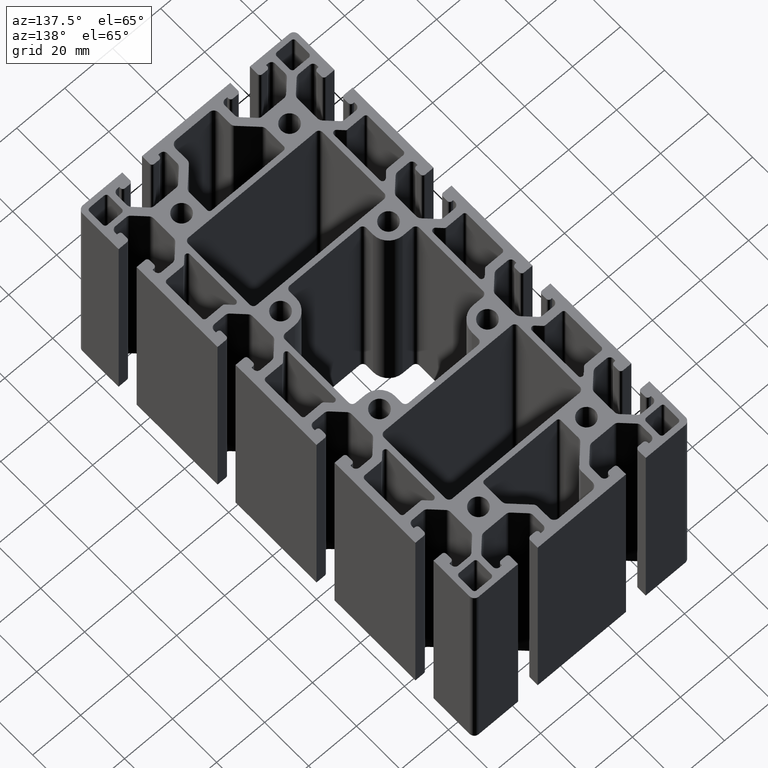
[diagram: clean part render]
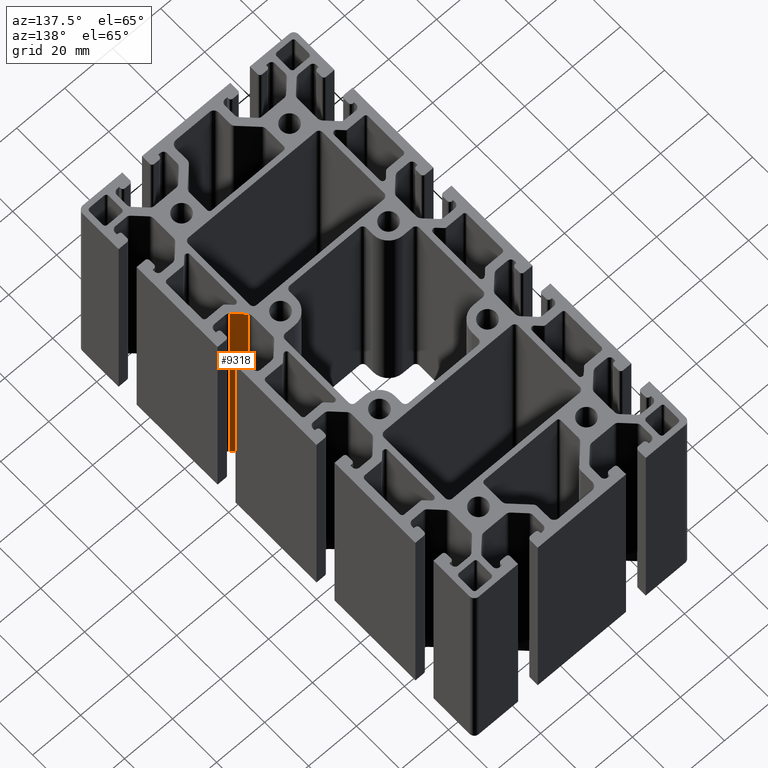
[diagram: same view with one face highlighted and labeled with its STEP entity id]
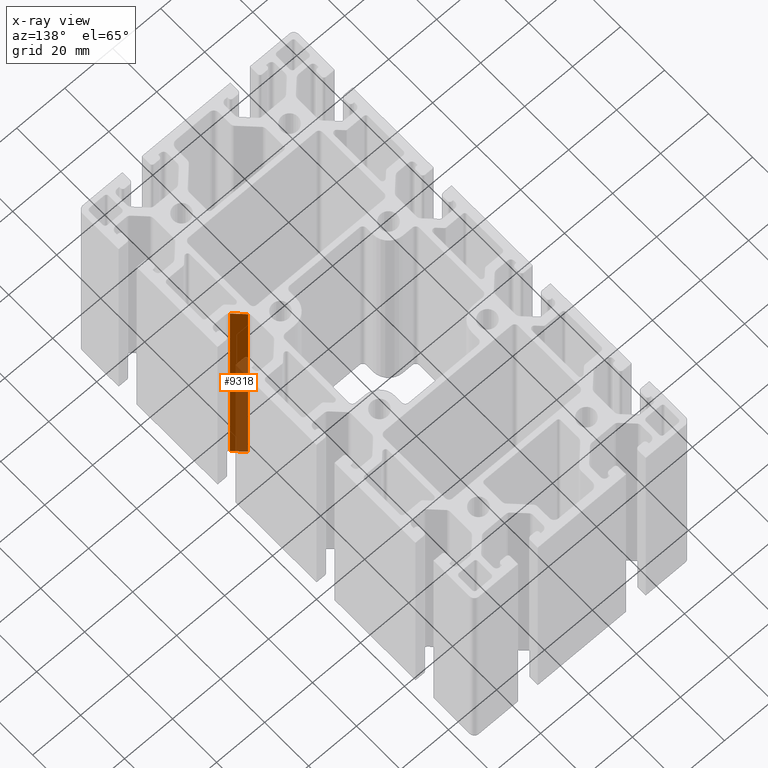
[diagram: x-ray of the same camera — body ghosted, the highlighted face saturated]
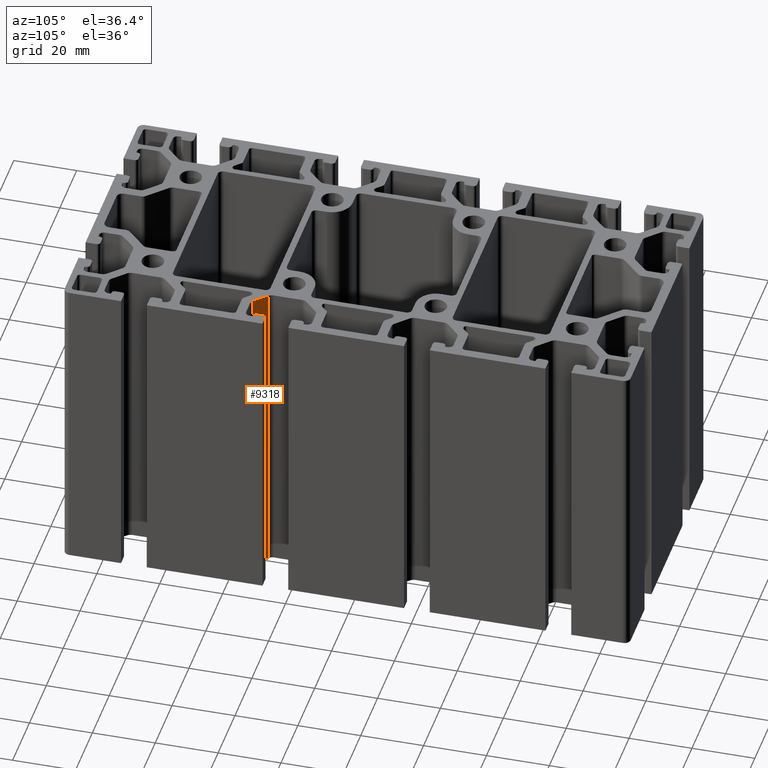
[diagram: same view with one face highlighted and labeled with its STEP entity id]
A machine part, auxiliary view. The second image highlights one B-rep face of the part: STEP entity #9318.
The next image is the same camera in x-ray: the body ghosted, the highlighted face saturated — about 46% of this face is hidden behind the body in this view.
A second angle (auxiliary view) of the same face is appended — the face is thin or edge-on in the first view.
In plain terms, the highlighted planar face has unit normal (0.7071, 0.7071, 0).
Its self-contained STEP definition (entity closure, byte-faithful):
#106=PLANE('',#9866);
#400=FACE_OUTER_BOUND('',#884,.T.);
#884=EDGE_LOOP('',(#6437,#6438,#6439,#6440));
#1490=LINE('',#13908,#2482);
#1491=LINE('',#13911,#2483);
#1492=LINE('',#13913,#2484);
#1493=LINE('',#13914,#2485);
#2482=VECTOR('',#11064,100.);
#2483=VECTOR('',#11067,5.58614357137374);
#2484=VECTOR('',#11068,5.58614357137374);
#2485=VECTOR('',#11069,100.);
#3911=VERTEX_POINT('',#13904);
#3912=VERTEX_POINT('',#13906);
#3913=VERTEX_POINT('',#13910);
#3914=VERTEX_POINT('',#13912);
#4938=EDGE_CURVE('',#3911,#3912,#1490,.T.);
#4939=EDGE_CURVE('',#3913,#3911,#1491,.T.);
#4940=EDGE_CURVE('',#3914,#3912,#1492,.T.);
#4941=EDGE_CURVE('',#3913,#3914,#1493,.T.);
#6437=ORIENTED_EDGE('',*,*,#4939,.T.);
#6438=ORIENTED_EDGE('',*,*,#4938,.T.);
#6439=ORIENTED_EDGE('',*,*,#4940,.F.);
#6440=ORIENTED_EDGE('',*,*,#4941,.F.);
#9318=ADVANCED_FACE('',(#400),#106,.T.);
#9866=AXIS2_PLACEMENT_3D('',#13909,#11065,#11066);
#11064=DIRECTION('',(0.,0.,-1.));
#11065=DIRECTION('center_axis',(0.70710678118654,0.707106781186555,0.));
#11066=DIRECTION('ref_axis',(0.707106781186555,-0.70710678118654,0.));
#11067=DIRECTION('',(0.707106781186555,-0.70710678118654,0.));
#11068=DIRECTION('',(0.707106781186555,-0.70710678118654,0.));
#11069=DIRECTION('',(0.,0.,-1.));
#13904=CARTESIAN_POINT('',(66.7857864376284,-33.8548329051691,0.));
#13906=CARTESIAN_POINT('',(66.7857864376284,-33.8548329051691,-100.));
#13908=CARTESIAN_POINT('',(66.7857864376284,-33.8548329051691,0.));
#13909=CARTESIAN_POINT('Origin',(62.8357864376284,-29.9048329051691,0.));
#13910=CARTESIAN_POINT('',(62.8357864376284,-29.9048329051691,0.));
#13911=CARTESIAN_POINT('',(62.8357864376284,-29.9048329051691,0.));
#13912=CARTESIAN_POINT('',(62.8357864376284,-29.9048329051691,-100.));
#13913=CARTESIAN_POINT('',(62.8357864376284,-29.9048329051691,-100.));
#13914=CARTESIAN_POINT('',(62.8357864376284,-29.9048329051691,0.));